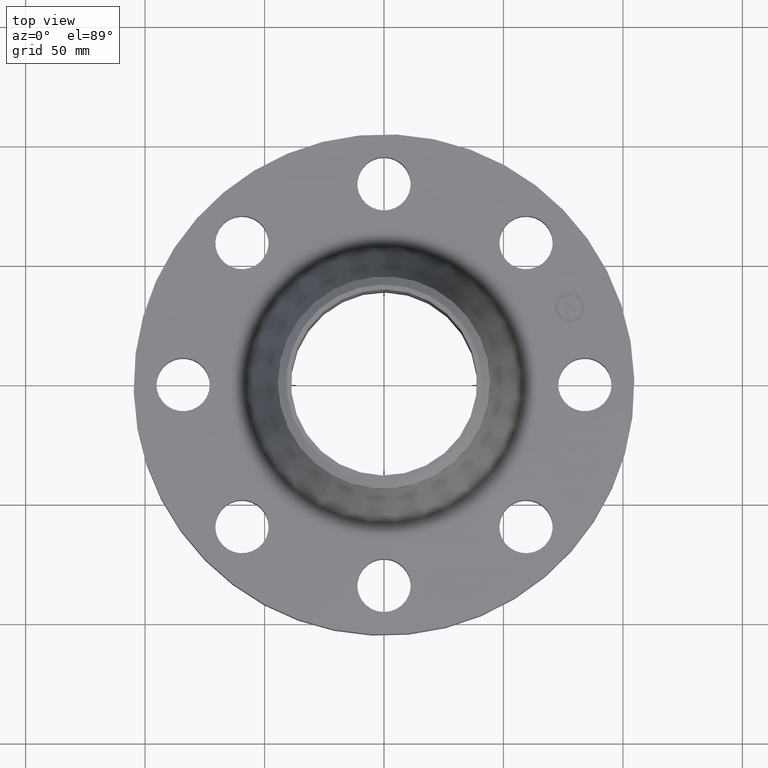
[diagram: clean part render]
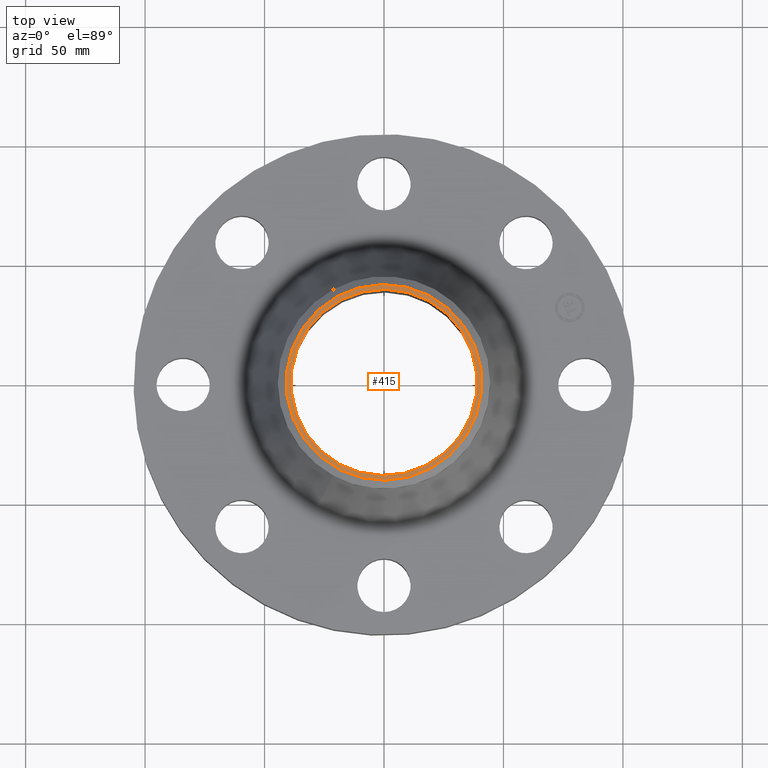
[diagram: same view with one face highlighted and labeled with its STEP entity id]
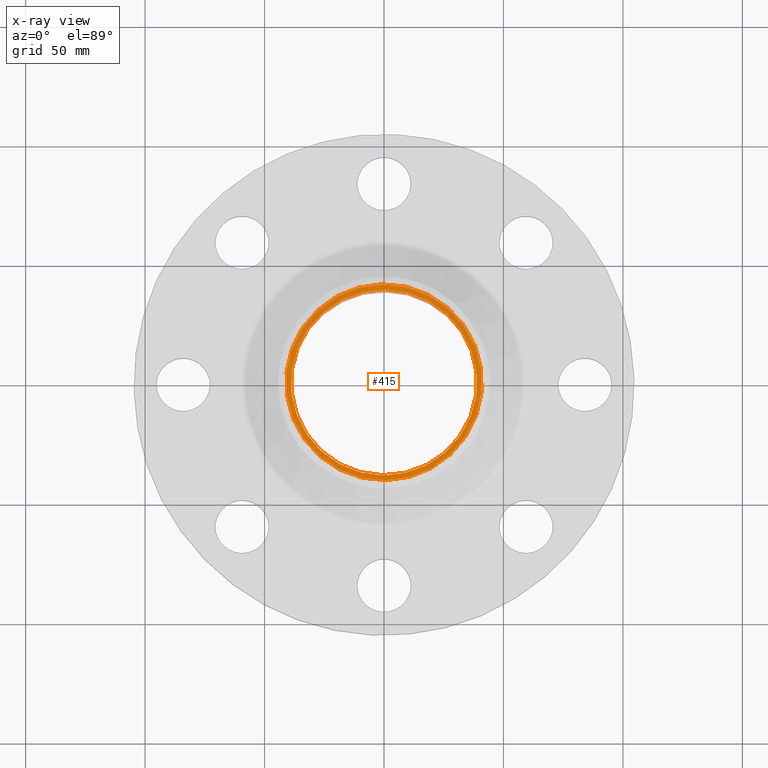
[diagram: x-ray of the same camera — body ghosted, the highlighted face saturated]
A machine part, top view. The second image highlights one B-rep face of the part: STEP entity #415.
The next image is the same camera in x-ray: the body ghosted, the highlighted face saturated — about 0% of this face is hidden behind the body in this view.
In plain terms, the highlighted planar face has unit normal (0, 0, -1).
Its self-contained STEP definition (entity closure, byte-faithful):
#322=AXIS2_PLACEMENT_3D('Circle Axis2P3D',#320,#321,$) ;
#347=AXIS2_PLACEMENT_3D('Circle Axis2P3D',#345,#346,$) ;
#382=AXIS2_PLACEMENT_3D('Circle Axis2P3D',#380,#381,$) ;
#400=AXIS2_PLACEMENT_3D('Plane Axis2P3D',#397,#398,#399) ;
#404=AXIS2_PLACEMENT_3D('Circle Axis2P3D',#402,#403,$) ;
#317=CARTESIAN_POINT('Vertex',(0.773188818632,-1.41531263907,3.06000000001)) ;
#320=CARTESIAN_POINT('Axis2P3D Location',(0.,0.,3.06000000001)) ;
#324=CARTESIAN_POINT('Vertex',(-0.773188818632,1.41531263907,3.06000000001)) ;
#345=CARTESIAN_POINT('Axis2P3D Location',(0.,0.,3.06000000001)) ;
#349=CARTESIAN_POINT('Vertex',(-0.735438776222,-1.34621164995,3.06000000001)) ;
#351=CARTESIAN_POINT('Vertex',(0.735438776222,1.34621164995,3.06000000001)) ;
#380=CARTESIAN_POINT('Axis2P3D Location',(0.,0.,3.06000000001)) ;
#397=CARTESIAN_POINT('Axis2P3D Location',(0.,1.75000000001,3.06000000001)) ;
#402=CARTESIAN_POINT('Axis2P3D Location',(0.,0.,3.06000000001)) ;
#321=DIRECTION('Axis2P3D Direction',(0.,0.,-0.0393700787402)) ;
#346=DIRECTION('Axis2P3D Direction',(0.,0.,-0.0393700787402)) ;
#381=DIRECTION('Axis2P3D Direction',(0.,0.,-0.0393700787402)) ;
#398=DIRECTION('Axis2P3D Direction',(0.,0.,-0.0393700787402)) ;
#399=DIRECTION('Axis2P3D XDirection',(0.0393700787402,0.,0.)) ;
#403=DIRECTION('Axis2P3D Direction',(0.,0.,-0.0393700787402)) ;
#408=ORIENTED_EDGE('',*,*,#406,.T.) ;
#409=ORIENTED_EDGE('',*,*,#326,.T.) ;
#412=ORIENTED_EDGE('',*,*,#353,.T.) ;
#413=ORIENTED_EDGE('',*,*,#384,.T.) ;
#414=FACE_BOUND('',#411,.T.) ;
#415=ADVANCED_FACE('PartBody',(#410,#414),#401,.F.) ;
#323=CIRCLE('generated circle',#322,1.61274015749) ;
#348=CIRCLE('generated circle',#347,1.53400000001) ;
#383=CIRCLE('generated circle',#382,1.53400000001) ;
#405=CIRCLE('generated circle',#404,1.61274015749) ;
#326=EDGE_CURVE('',#325,#318,#323,.F.) ;
#353=EDGE_CURVE('',#350,#352,#348,.T.) ;
#384=EDGE_CURVE('',#352,#350,#383,.T.) ;
#406=EDGE_CURVE('',#318,#325,#405,.F.) ;
#407=EDGE_LOOP('',(#408,#409)) ;
#411=EDGE_LOOP('',(#412,#413)) ;
#410=FACE_OUTER_BOUND('',#407,.T.) ;
#401=PLANE('',#400) ;
#318=VERTEX_POINT('',#317) ;
#325=VERTEX_POINT('',#324) ;
#350=VERTEX_POINT('',#349) ;
#352=VERTEX_POINT('',#351) ;